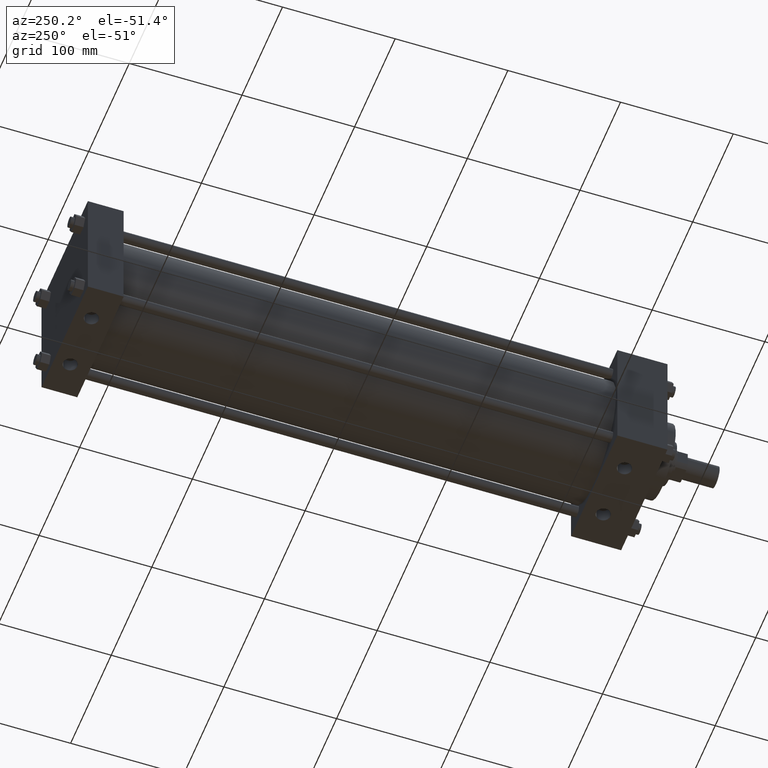
[diagram: clean part render]
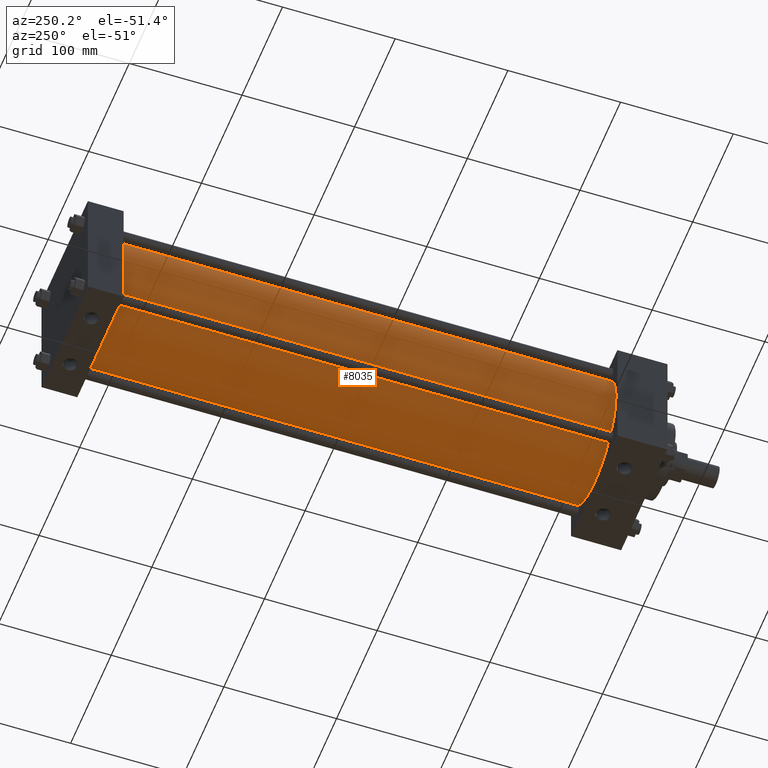
[diagram: same view with one face highlighted and labeled with its STEP entity id]
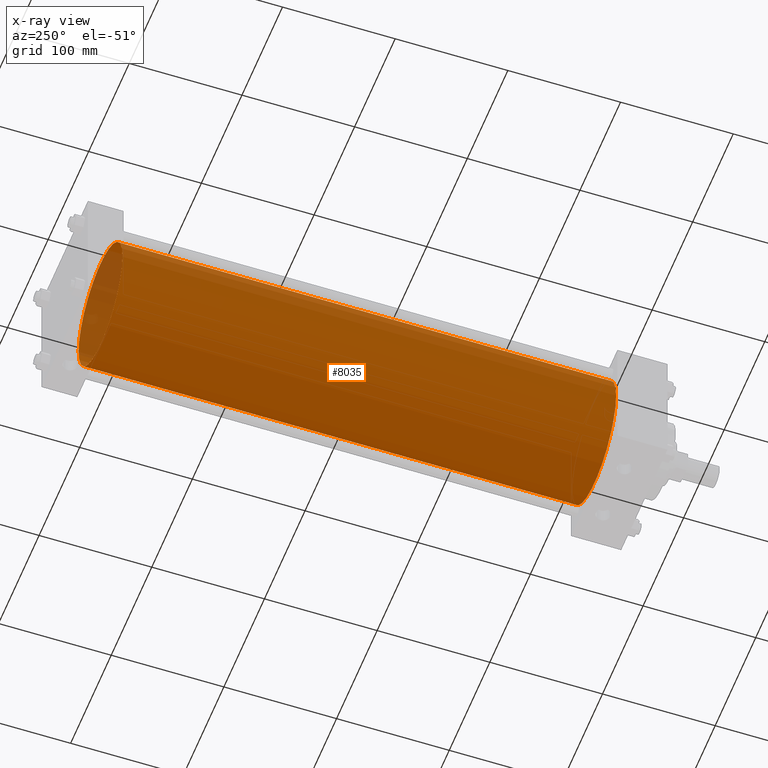
[diagram: x-ray of the same camera — body ghosted, the highlighted face saturated]
A machine part, auxiliary view. The second image highlights one B-rep face of the part: STEP entity #8035.
The next image is the same camera in x-ray: the body ghosted, the highlighted face saturated — about 4% of this face is hidden behind the body in this view.
In plain terms, the highlighted cylindrical surface (bore or boss wall) has radius 53.975 mm, axis along (0, -1, 0).
Its self-contained STEP definition (entity closure, byte-faithful):
#977=EDGE_CURVE('',#983,#983,#978,.T.);
#978=CIRCLE('',#979,5.397500000E+001);
#979=AXIS2_PLACEMENT_3D('',#980,#981,#982);
#980=CARTESIAN_POINT('',(0.000000000E+000,7.937500000E+001,0.000000000E+000));
#981=DIRECTION('',(0.0E+000,1.0E+000,0.0E+000));
#982=DIRECTION('',(-1.0E+000,0.0E+000,0.0E+000));
#983=VERTEX_POINT('',#984);
#984=CARTESIAN_POINT('',(5.397500000E+001,7.937500000E+001,0.000000000E+000));
#2152=FACE_OUTER_BOUND('',#2154,.T.);
#2153=FACE_BOUND('',#2155,.T.);
#2154=EDGE_LOOP('',(#2156));
#2155=EDGE_LOOP('',(#2165));
#2156=ORIENTED_EDGE('',*,*,#2157,.F.);
#2157=EDGE_CURVE('',#2163,#2163,#2158,.T.);
#2158=CIRCLE('',#2159,5.397500000E+001);
#2159=AXIS2_PLACEMENT_3D('',#2160,#2161,#2162);
#2160=CARTESIAN_POINT('',(0.000000000E+000,5.175250000E+002,0.000000000E+000));
#2161=DIRECTION('',(0.0E+000,1.0E+000,0.0E+000));
#2162=DIRECTION('',(1.0E+000,0.0E+000,0.0E+000));
#2163=VERTEX_POINT('',#2164);
#2164=CARTESIAN_POINT('',(5.397500000E+001,5.175250000E+002,0.000000000E+000));
#2165=ORIENTED_EDGE('',*,*,#977,.T.);
#2166=CYLINDRICAL_SURFACE('',#2167,5.397500000E+001);
#2167=AXIS2_PLACEMENT_3D('',#2168,#2169,#2170);
#2168=CARTESIAN_POINT('',(0.000000000E+000,5.175250000E+002,0.000000000E+000));
#2169=DIRECTION('',(0.0E+000,-1.0E+000,0.0E+000));
#2170=DIRECTION('',(0.0E+000,0.0E+000,-1.0E+000));
#8035=ADVANCED_FACE('',(#2152,#2153),#2166,.T.);